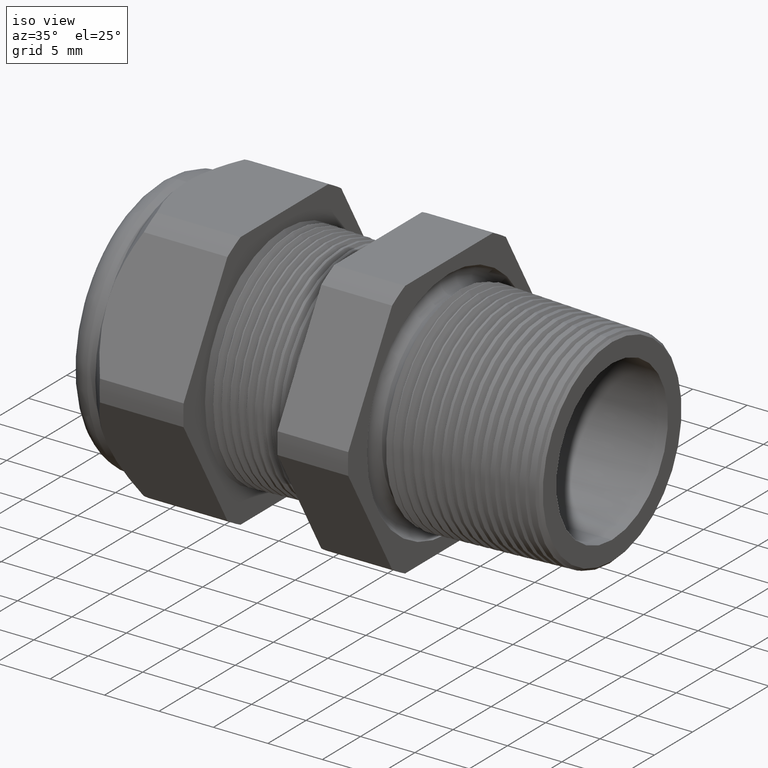
[diagram: clean part render]
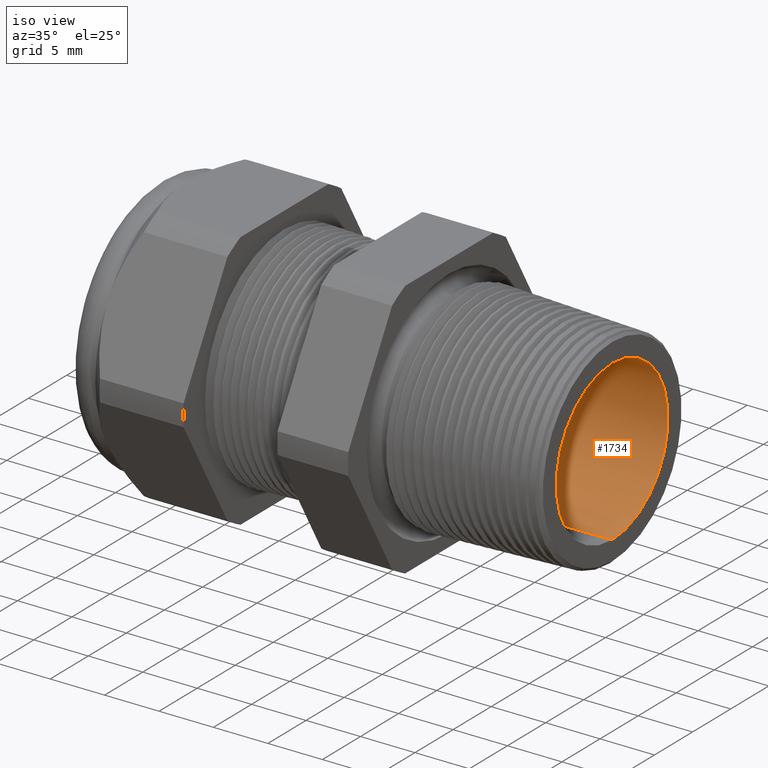
[diagram: same view with one face highlighted and labeled with its STEP entity id]
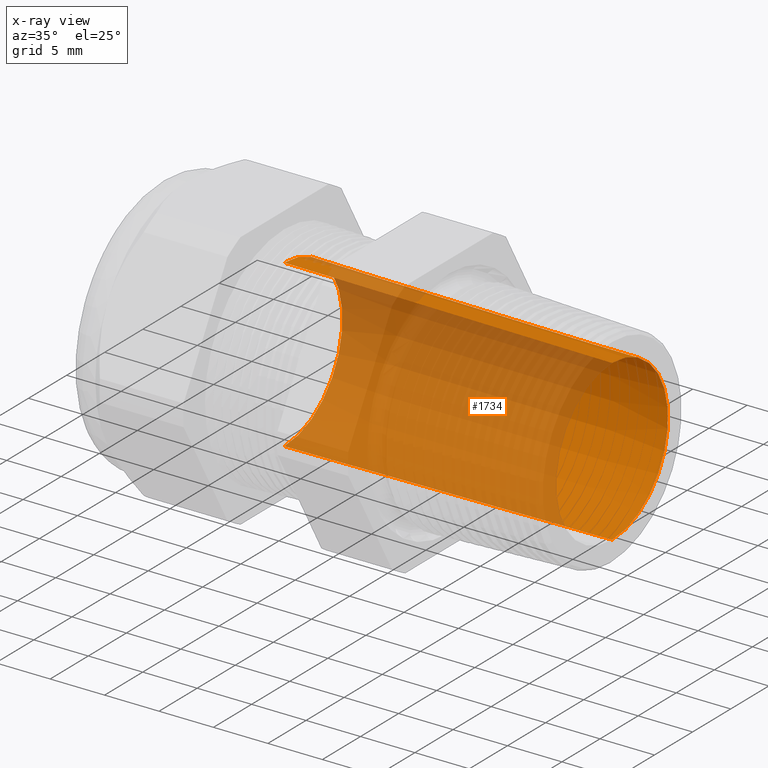
[diagram: x-ray of the same camera — body ghosted, the highlighted face saturated]
A machine part, iso view. The second image highlights one B-rep face of the part: STEP entity #1734.
The next image is the same camera in x-ray: the body ghosted, the highlighted face saturated — about 72% of this face is hidden behind the body in this view.
In plain terms, the highlighted conical surface has half-angle 0.551 deg.
Its self-contained STEP definition (entity closure, byte-faithful):
#1042 = VERTEX_POINT ( 'NONE', #3873 ) ;
#1043 = VERTEX_POINT ( 'NONE', #3872 ) ;
#1045 = EDGE_CURVE ( 'NONE', #1043, #1046, #3871, .T. ) ;
#1046 = VERTEX_POINT ( 'NONE', #3867 ) ;
#1049 = VERTEX_POINT ( 'NONE', #3861 ) ;
#1103 = EDGE_CURVE ( 'NONE', #1042, #1049, #3956, .T. ) ;
#1716 = ORIENTED_EDGE ( 'NONE', *, *, #1733, .F. ) ;
#1733 = EDGE_CURVE ( 'NONE', #1046, #1049, #5248, .T. ) ;
#1734 = ADVANCED_FACE ( 'NONE', ( #5243 ), #5242, .F. ) ;
#1735 = EDGE_LOOP ( 'NONE', ( #1736, #1737, #1739, #1716 ) ) ;
#1736 = ORIENTED_EDGE ( 'NONE', *, *, #1045, .F. ) ;
#1737 = ORIENTED_EDGE ( 'NONE', *, *, #1738, .T. ) ;
#1738 = EDGE_CURVE ( 'NONE', #1043, #1042, #5241, .T. ) ;
#1739 = ORIENTED_EDGE ( 'NONE', *, *, #1103, .T. ) ;
#3861 = CARTESIAN_POINT ( 'NONE',  ( -0.9054330708661416600, 3.673940397442059500E-017, 0.2999999999999999900 ) ) ;
#3867 = CARTESIAN_POINT ( 'NONE',  ( -0.9054330708661416600, 0.0000000000000000000, -0.2999999999999999900 ) ) ;
#3868 = DIRECTION ( 'NONE',  ( -0.9999537929100643700, 1.177267464040285600E-018, -0.009613118368985613300 ) ) ;
#3869 = VECTOR ( 'NONE', #3868, 39.37007874015748100 ) ;
#3870 = CARTESIAN_POINT ( 'NONE',  ( -0.9054330708661416600, 3.673940397442058900E-017, -0.2999999999999999900 ) ) ;
#3871 = LINE ( 'NONE', #3870, #3869 ) ;
#3872 = CARTESIAN_POINT ( 'NONE',  ( 0.2800000000000000300, 3.604158583771115400E-017, -0.2886037649843973300 ) ) ;
#3873 = CARTESIAN_POINT ( 'NONE',  ( 0.2800000000000000300, 0.0000000000000000000, 0.2886037649843973300 ) ) ;
#3948 = DIRECTION ( 'NONE',  ( -0.9999537929100643700, 0.0000000000000000000, 0.009613118368985613300 ) ) ;
#3949 = VECTOR ( 'NONE', #3948, 39.37007874015748100 ) ;
#3950 = CARTESIAN_POINT ( 'NONE',  ( -0.9054330708661416600, 0.0000000000000000000, 0.2999999999999999900 ) ) ;
#3956 = LINE ( 'NONE', #3950, #3949 ) ;
#5233 = DIRECTION ( 'NONE',  ( 0.0000000000000000000, 0.0000000000000000000, -1.000000000000000000 ) ) ;
#5234 = DIRECTION ( 'NONE',  ( 1.000000000000000000, 0.0000000000000000000, 0.0000000000000000000 ) ) ;
#5235 = CARTESIAN_POINT ( 'NONE',  ( 0.2800000000000000300, 0.0000000000000000000, 0.0000000000000000000 ) ) ;
#5236 = AXIS2_PLACEMENT_3D ( 'NONE', #5235, #5234, #5233 ) ;
#5237 = DIRECTION ( 'NONE',  ( 0.0000000000000000000, 0.0000000000000000000, 1.000000000000000000 ) ) ;
#5238 = DIRECTION ( 'NONE',  ( -1.000000000000000000, 0.0000000000000000000, 0.0000000000000000000 ) ) ;
#5239 = CARTESIAN_POINT ( 'NONE',  ( -0.9054330708661416600, 0.0000000000000000000, 0.0000000000000000000 ) ) ;
#5240 = AXIS2_PLACEMENT_3D ( 'NONE', #5239, #5238, #5237 ) ;
#5241 = CIRCLE ( 'NONE', #5236, 0.2886037649843973300 ) ;
#5242 = CONICAL_SURFACE ( 'NONE', #5240, 0.2999999999999999900, 0.009613266436464002600 ) ;
#5243 = FACE_OUTER_BOUND ( 'NONE', #1735, .T. ) ;
#5244 = DIRECTION ( 'NONE',  ( 0.0000000000000000000, 0.0000000000000000000, -1.000000000000000000 ) ) ;
#5245 = DIRECTION ( 'NONE',  ( 1.000000000000000000, 0.0000000000000000000, 0.0000000000000000000 ) ) ;
#5246 = CARTESIAN_POINT ( 'NONE',  ( -0.9054330708661416600, 0.0000000000000000000, 0.0000000000000000000 ) ) ;
#5247 = AXIS2_PLACEMENT_3D ( 'NONE', #5246, #5245, #5244 ) ;
#5248 = CIRCLE ( 'NONE', #5247, 0.2999999999999999900 ) ;